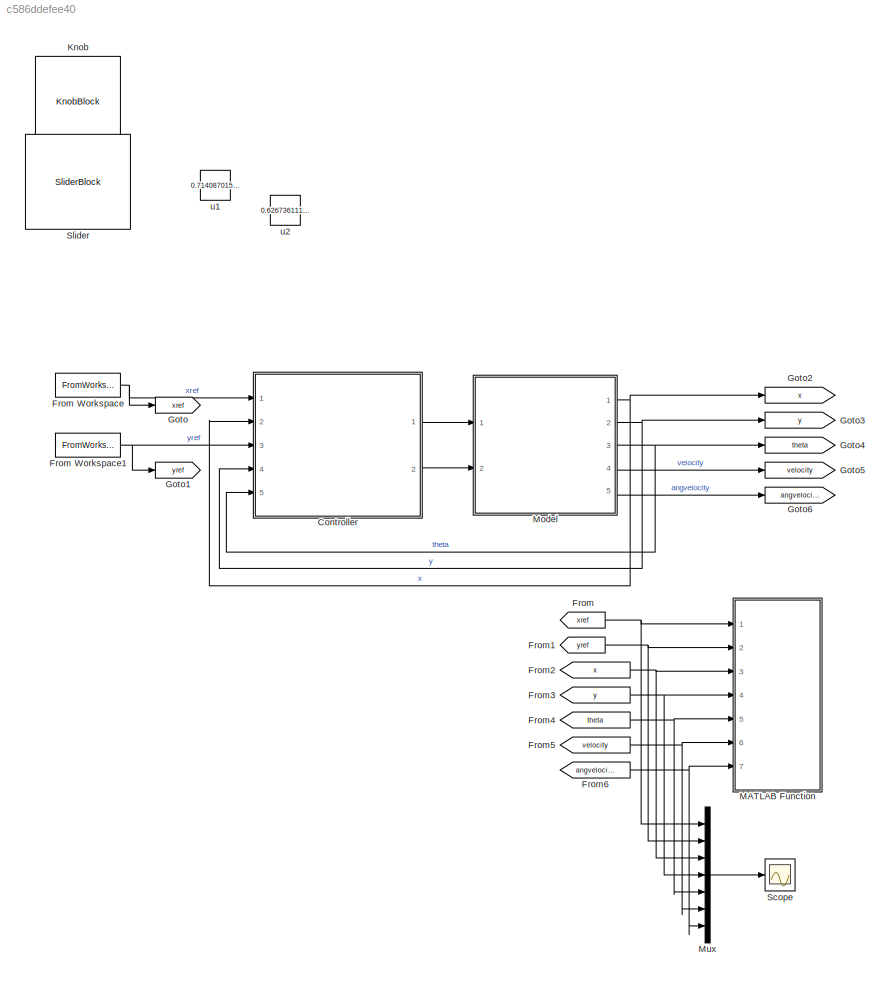
MODEL slx_c586ddefee40
KIND model
CONFIG AbsTol = auto
CONFIG EnableMultiTasking = off
CONFIG FixedStep = Simulation_Step
CONFIG MaxStep = auto
CONFIG MinStep = 0.1
CONFIG RelTol = 1e-3
CONFIG SampleTimeConstraint = Unconstrained
CONFIG Solver = ode4
CONFIG SolverName = ode4
CONFIG StartTime = 0.0
CONFIG StopTime = EndTime
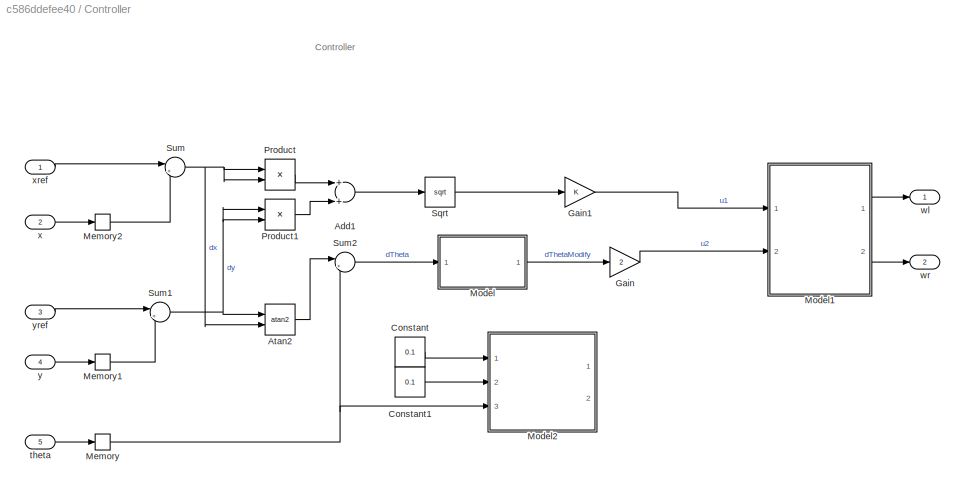
BLOCK [SubSystem] Controller
  Ports = [5, 2]
  RequestExecContextInheritance = off
BLOCK [Sum] Controller/Add1
  InputSameDT = off
  OutDataTypeStr = Inherit: Inherit via internal rule
  Ports = [2, 1]
  SaturateOnIntegerOverflow = off
BLOCK [Trigonometry] Controller/Atan2
  Operator = atan2
  Ports = [2, 1]
BLOCK [Constant] Controller/Constant
  Commented = on
  Value = 0.1
BLOCK [Constant] Controller/Constant1
  Commented = on
  Value = 0.1
BLOCK [Gain] Controller/Gain
  Gain = 2
  OutDataTypeStr = Inherit: Inherit via internal rule
  ParamDataTypeStr = Inherit: Inherit via internal rule
  SaturateOnIntegerOverflow = off
BLOCK [Gain] Controller/Gain1
  OutDataTypeStr = Inherit: Inherit via internal rule
  ParamDataTypeStr = Inherit: Inherit via internal rule
  SaturateOnIntegerOverflow = off
BLOCK [Memory] Controller/Memory
  InheritSampleTime = on
  InitialCondition = theta0
BLOCK [Memory] Controller/Memory1
  InheritSampleTime = on
  InitialCondition = y0
BLOCK [Memory] Controller/Memory2
  InheritSampleTime = on
  InitialCondition = x0
BLOCK [ModelReference] Controller/Model
  ModelNameDialog = thetaModify.slx
  ModelReferenceVersion = 1.4
  Ports = [1, 1]
BLOCK [ModelReference] Controller/Model1
  ModelNameDialog = u2w.slx
  ModelReferenceVersion = 1.3
  Ports = [2, 2]
BLOCK [ModelReference] Controller/Model2
  Commented = on
  ModelNameDialog = Czeta.slx
  ModelReferenceVersion = 1.5
  Ports = [3, 2]
BLOCK [Product] Controller/Product
  InputSameDT = off
  OutDataTypeStr = Inherit: Inherit via internal rule
  Ports = [2, 1]
  RndMeth = Floor
  SaturateOnIntegerOverflow = off
BLOCK [Product] Controller/Product1
  InputSameDT = off
  OutDataTypeStr = Inherit: Inherit via internal rule
  Ports = [2, 1]
  RndMeth = Floor
  SaturateOnIntegerOverflow = off
BLOCK [Sqrt] Controller/Sqrt
BLOCK [Sum] Controller/Sum
  IconShape = round
  InputSameDT = off
  Inputs = |+-
  OutDataTypeStr = Inherit: Inherit via internal rule
  Ports = [2, 1]
  SaturateOnIntegerOverflow = off
BLOCK [Sum] Controller/Sum1
  IconShape = round
  InputSameDT = off
  Inputs = |+-
  OutDataTypeStr = Inherit: Inherit via internal rule
  Ports = [2, 1]
  SaturateOnIntegerOverflow = off
BLOCK [Sum] Controller/Sum2
  IconShape = round
  InputSameDT = off
  Inputs = |+-
  OutDataTypeStr = Inherit: Inherit via internal rule
  Ports = [2, 1]
  SaturateOnIntegerOverflow = off
BLOCK [Inport] Controller/theta
  IconDisplay = Port number
  Port = 5
BLOCK [Outport] Controller/wl
  IconDisplay = Port number
BLOCK [Outport] Controller/wr
  IconDisplay = Port number
  Port = 2
BLOCK [Inport] Controller/x
  IconDisplay = Port number
  Port = 2
BLOCK [Inport] Controller/xref
  IconDisplay = Port number
BLOCK [Inport] Controller/y
  IconDisplay = Port number
  Port = 4
BLOCK [Inport] Controller/yref
  IconDisplay = Port number
  Port = 3
BLOCK [From] From
  GotoTag = xref
BLOCK [FromWorkspace] From Workspace
  Interpolate = off
  OutputAfterFinalValue = Holding final value
  SampleTime = 0
  VariableName = [tt xx]
  ZeroCross = on
BLOCK [FromWorkspace] From Workspace1
  Interpolate = off
  OutputAfterFinalValue = Holding final value
  SampleTime = 0
  VariableName = [tt yy]
  ZeroCross = on
BLOCK [From] From1
  GotoTag = yref
BLOCK [From] From2
  GotoTag = x
BLOCK [From] From3
  GotoTag = y
BLOCK [From] From4
  GotoTag = theta
BLOCK [From] From5
  GotoTag = velocity
BLOCK [From] From6
  GotoTag = angvelocity
BLOCK [Goto] Goto
  GotoTag = xref
  IconDisplay = Signal name
BLOCK [Goto] Goto1
  GotoTag = yref
  IconDisplay = Signal name
BLOCK [Goto] Goto2
  GotoTag = x
  IconDisplay = Signal name
BLOCK [Goto] Goto3
  GotoTag = y
  IconDisplay = Signal name
BLOCK [Goto] Goto4
  GotoTag = theta
  IconDisplay = Signal name
BLOCK [Goto] Goto5
  GotoTag = velocity
  IconDisplay = Signal name
BLOCK [Goto] Goto6
  GotoTag = angvelocity
  IconDisplay = Signal name
BLOCK [KnobBlock] Knob
  Commented = on
  ScaleMax = 1
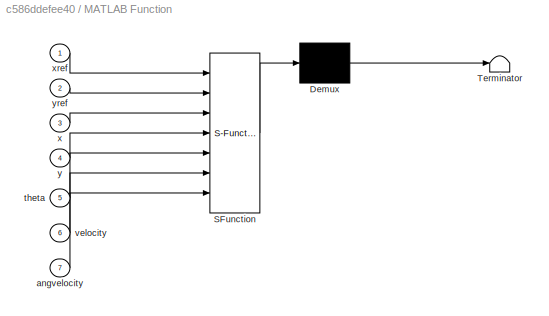
BLOCK [SubSystem] MATLAB Function
  ErrorFcn = Stateflow.Translate.translate
  PermitHierarchicalResolution = ExplicitOnly
  Ports = [7]
  RequestExecContextInheritance = off
  SFBlockType = MATLAB Function
  TreatAsAtomicUnit = on
BLOCK [Demux] MATLAB Function/ Demux 
  Outputs = 1
  Ports = [1, 1]
BLOCK [S-Function] MATLAB Function/ SFunction 
  EnableBusSupport = on
  FunctionName = sf_sfun
  PortCounts = [7 1]
  Ports = [7, 1]
  SFcnIsStateOwnerBlock = off
  SFunctionDeploymentMode = off
  Tag = Stateflow S-Function 2
BLOCK [Terminator] MATLAB Function/ Terminator 
BLOCK [Inport] MATLAB Function/angvelocity
  IconDisplay = Port number
  Port = 7
BLOCK [Inport] MATLAB Function/theta
  IconDisplay = Port number
  Port = 5
BLOCK [Inport] MATLAB Function/velocity
  IconDisplay = Port number
  Port = 6
BLOCK [Inport] MATLAB Function/x
  IconDisplay = Port number
  Port = 3
BLOCK [Inport] MATLAB Function/xref
  IconDisplay = Port number
BLOCK [Inport] MATLAB Function/y
  IconDisplay = Port number
  Port = 4
BLOCK [Inport] MATLAB Function/yref
  IconDisplay = Port number
  Port = 2
BLOCK [ModelReference] Model
  ModelNameDialog = TwoWheelModel.slx
  ModelReferenceVersion = 1.10
  Ports = [2, 5]
BLOCK [Mux] Mux
  DisplayOption = bar
  Inputs = 7
  Ports = [7, 1]
BLOCK [Scope] Scope
  Floating = off
  NumInputPorts = 1
  Ports = [1]
  ScopeSpecificationString = Simulink.scopes.TimeScopeBlockCfg('CurrentConfiguration', extmgr.ConfigurationSet(extmgr.Configuration('Core','General UI',true),extmgr.Configuration('Core','Source UI',true),extmgr.Configuration('Sources','WiredSimulink',true,'DataLoggingVariableName','LOG','DataLogging',true,'DataLoggingSaveFormat','Array'),extmgr.Configuration('Visuals','Time Domain',true,'SerializedDisplays',{struct('MinYLimRe...<+1500ch>
BLOCK [SliderBlock] Slider
  Commented = on
  ScaleMax = 2
  ScaleMin = -2
  TickInterval = 1
BLOCK [Constant] u1
  Commented = on
  Value = 0.7140870157877605
BLOCK [Constant] u2
  Commented = on
  Value = 0.6267361111111112
ANNOTATION Controller: Controller
LINE Controller/Add1:1 -> Controller/Sqrt:1
LINE Controller/Atan2:1 -> Controller/Sum2:1
LINE Controller/Constant1:1 -> Controller/Model2:2
LINE Controller/Constant:1 -> Controller/Model2:1
LINE Controller/Gain1:1 -> Controller/Model1:1
LINE Controller/Gain:1 -> Controller/Model1:2
LINE Controller/Memory1:1 -> Controller/Sum1:2
LINE Controller/Memory2:1 -> Controller/Sum:2
NET Controller/Memory:1 -> Controller/Model2:3, Controller/Sum2:2
LINE Controller/Model1:1 -> Controller/wl:1
LINE Controller/Model1:2 -> Controller/wr:1
LINE Controller/Model:1 -> Controller/Gain:1
LINE Controller/Product1:1 -> Controller/Add1:2
LINE Controller/Product:1 -> Controller/Add1:1
LINE Controller/Sqrt:1 -> Controller/Gain1:1
NET Controller/Sum1:1 -> Controller/Atan2:1, Controller/Product1:1, Controller/Product1:2
LINE Controller/Sum2:1 -> Controller/Model:1
NET Controller/Sum:1 -> Controller/Atan2:2, Controller/Product:1, Controller/Product:2
LINE Controller/theta:1 -> Controller/Memory:1
LINE Controller/x:1 -> Controller/Memory2:1
LINE Controller/xref:1 -> Controller/Sum:1
LINE Controller/y:1 -> Controller/Memory1:1
LINE Controller/yref:1 -> Controller/Sum1:1
LINE Controller:1 -> Model:1
LINE Controller:2 -> Model:2
NET From Workspace1:1 -> Controller:3, Goto1:1
NET From Workspace:1 -> Controller:1, Goto:1
NET From1:1 -> MATLAB Function:2, Mux:2
NET From2:1 -> MATLAB Function:3, Mux:3
NET From3:1 -> MATLAB Function:4, Mux:4
NET From4:1 -> MATLAB Function:5, Mux:5
NET From5:1 -> MATLAB Function:6, Mux:6
NET From6:1 -> MATLAB Function:7, Mux:7
NET From:1 -> MATLAB Function:1, Mux:1
NET Model:1 -> Controller:2, Goto2:1
NET Model:2 -> Controller:4, Goto3:1
NET Model:3 -> Controller:5, Goto4:1
LINE Model:4 -> Goto5:1
LINE Model:5 -> Goto6:1
LINE Mux:1 -> Scope:1
note: NET lines group one-source signal fan-out (src -> all destinations, sorted); 1:1 wires keep LINE
CHART MATLAB Function states=1 transitions=1
  STATE_LABEL 'eML_blk_kernel()'
  STATE_LABEL "SCRIPT:\nfunction fcn(xref, yref, x, y, theta, velocity, angvelocity)\n    coder.extrinsic('evalin', 'plot', 'setfield', 'redraw');\n    TwoWheel = evalin('base','TwoWheel'); \n    %fig = evalin('base','fig'); %ベースワークスペースのハンドル取得\n    \n    hXYrefPoint = evalin('base','hXYrefPoint');\n    set(hXYrefPoint,'xdata',xref,'ydata',yref);\n    \n    TwoWheel = setfield(TwoWheel, 'X', x);\n    TwoWheel = setfield(Tw...<+253ch>"
